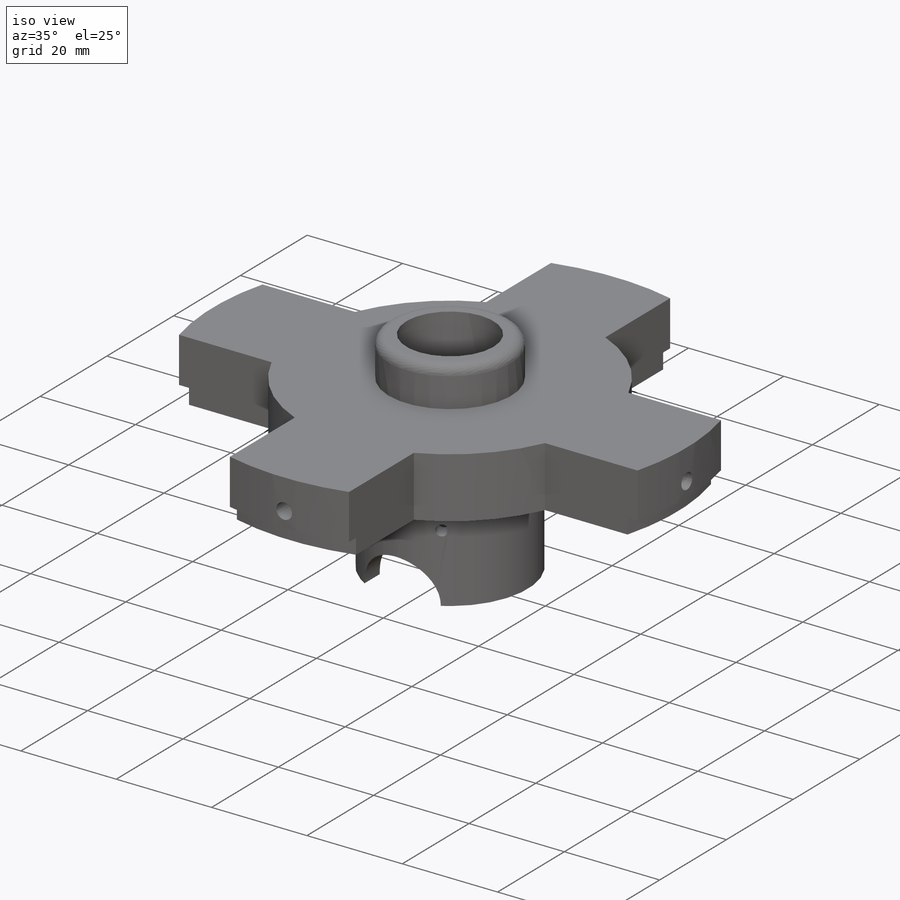
[diagram: iso view]
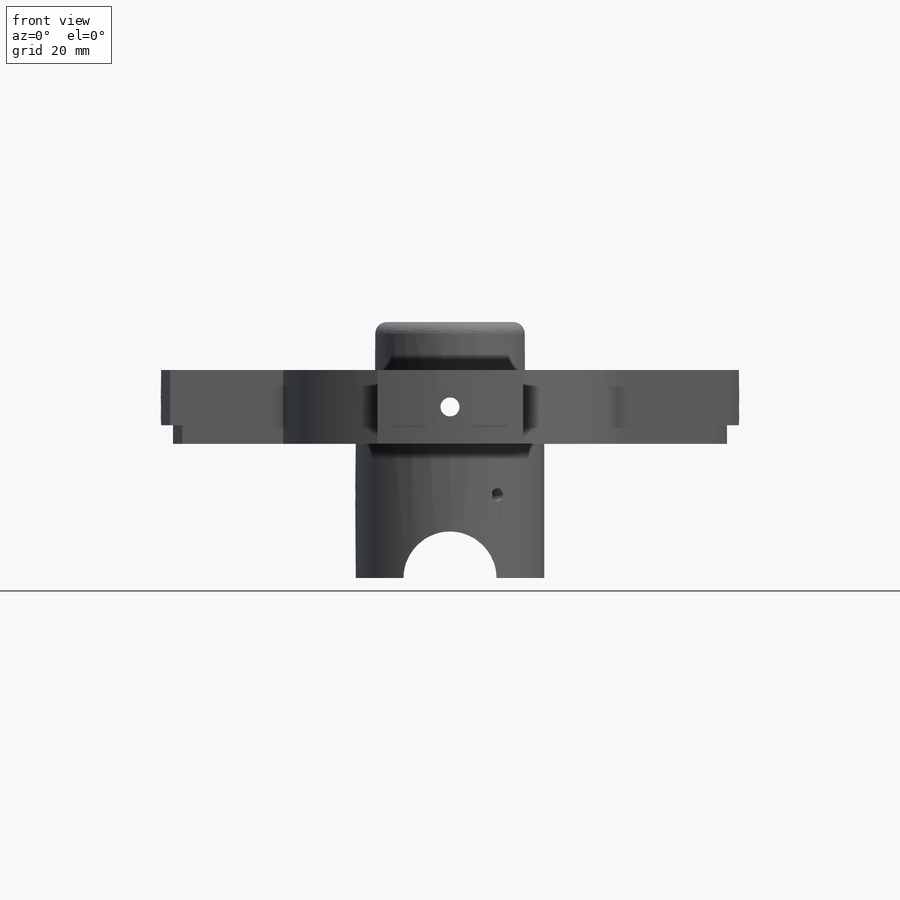
[diagram: front view]
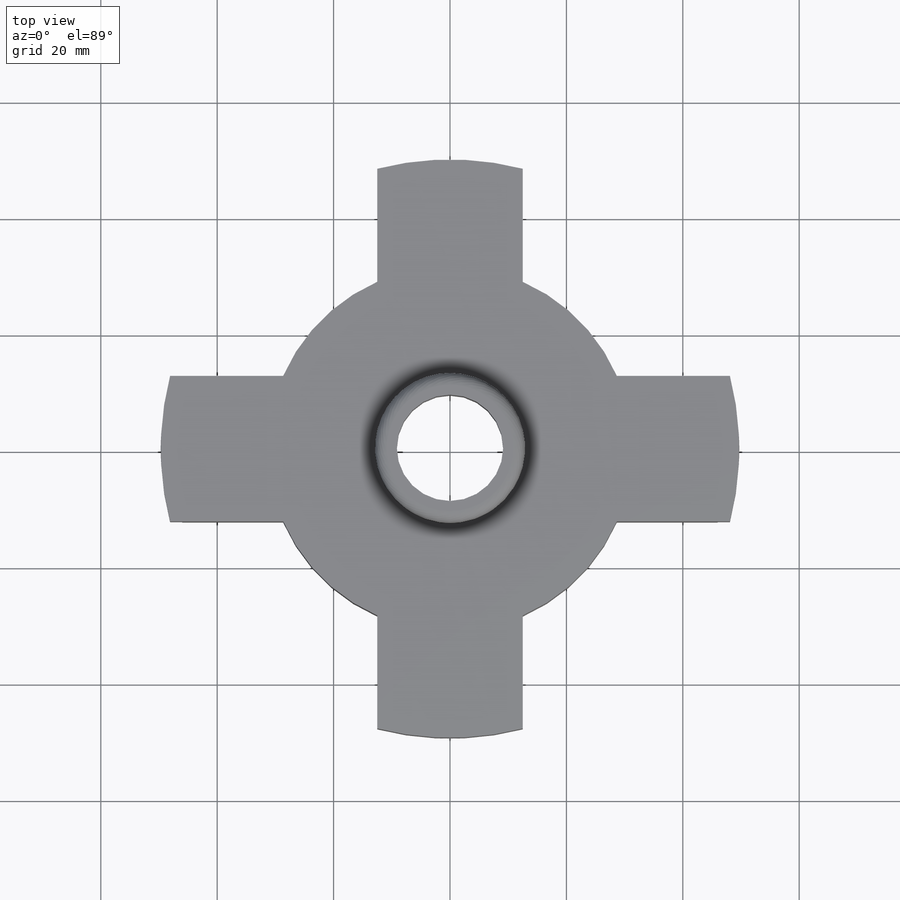
[diagram: top view]
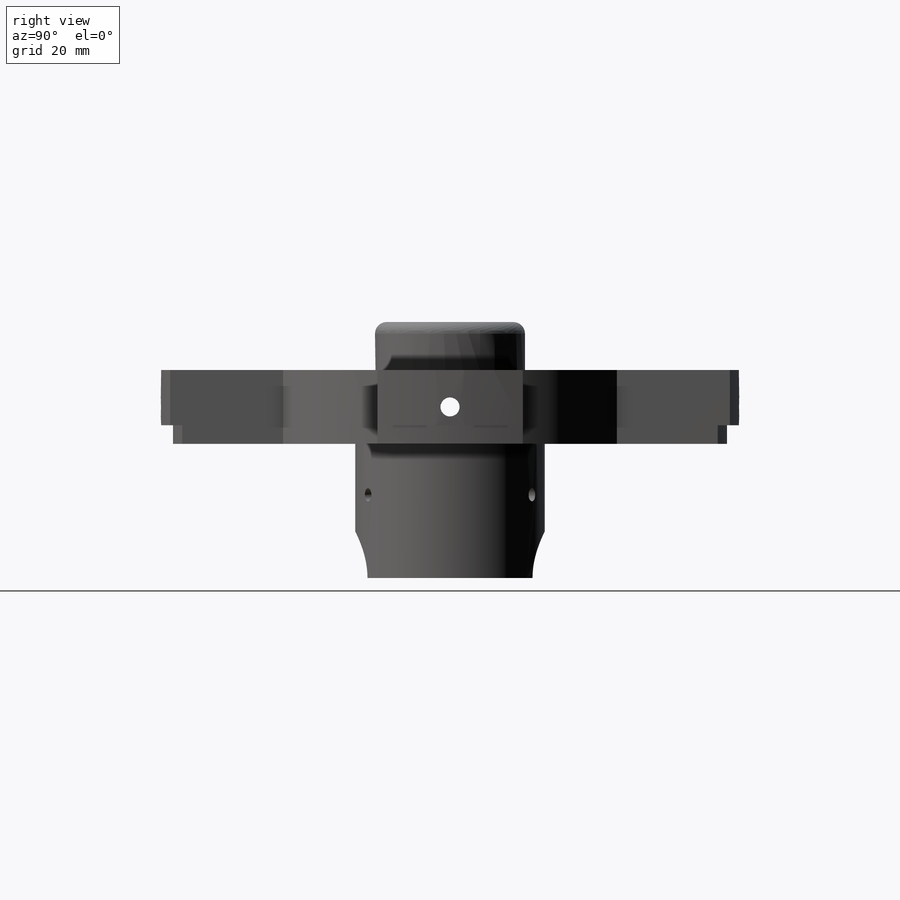
[diagram: right view]
SOLIDWORKS PART (.sldprt)
format: sldprt  version: not decoded by parser v0  size: 312,832 bytes
history: native  units: mm
features: sketch x6, cut_extrude x4, pattern_circular x3, material x1, revolve x1, fillet x1, extrude x1 (+16 scaffold rows collapsed)
feature tree (33):
  scaffold x16  (default folders/planes/origin — collapsed)
  material  "ABS PC"
  sketch  "Sketch1"  dims[c1.D1=25.0mm c1.D2=18.25mm c1.D3=32.5mm c1.D4=12.0mm c2.D3=32.5mm c2.D2=18.25mm c2.D5=12.0mm c3.D2=18.25mm c3.D5=25.0mm c3.D1=12.53mm c4.D2=9.14mm c4.D3=32.0mm c4.D5=3.75mm]
  revolve  "Revolve1"  Angle=360deg
  sketch  "Sketch2"  dims[c1.D1=~11.234615mm c1.D2=~9.400832mm c1.D3=~9.340771mm c2.D1=16.0mm c2.D2=1.0mm]
  cut_extrude  "Cut-Extrude3"  [1 undecoded]
  sketch  "Sketch3"  dims[D1=2.25mm]
  cut_extrude  "Cut-Extrude4"  [1 undecoded]
  pattern_circular  "CirPattern1"  Count=3 Angle=120deg
  fillet  "Fillet4"  Radius=2mm
  sketch  "Sketch4"  dims[c1.D1=99.4mm c1.D2=15.0mm c1.D3=25.0mm c1.D4=~31.782574mm c2.D4=4.0]
  extrude  "Boss-Extrude1"  Depth=12.7mm
  sketch  "Sketch5"  dims[D1=3.285mm]
  cut_extrude  "Cut-Extrude5"  [1 undecoded]
  sketch  "Sketch6"  dims[D1=2.025mm]
  cut_extrude  "Cut-Extrude6"  Depth=3.2004mm
  pattern_circular  "CirPattern2"  Count=4 Angle=360deg
  pattern_circular  "CirPattern3"  Count=4 Angle=360deg
decode coverage: 13 of 16 modeling features carry decoded parameters
note: ~ marks probable driven/reference dimensions
note: 3 parameter values undecoded
summary: no parameter record found for 3 features
note: suppression state not decoded; provenance and decode notes live in map.json
